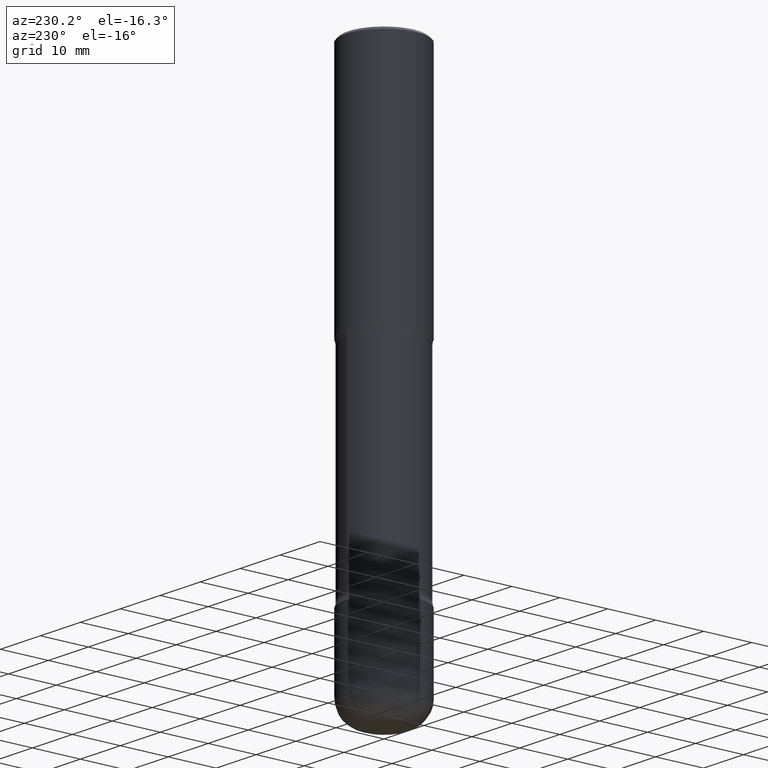
[diagram: clean part render]
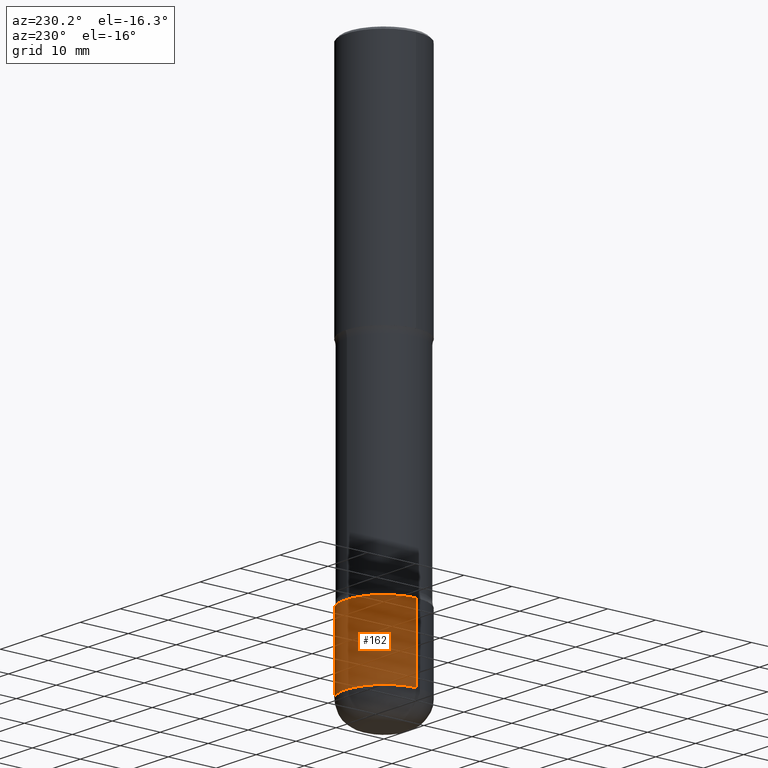
[diagram: same view with one face highlighted and labeled with its STEP entity id]
A machine part, auxiliary view. The second image highlights one B-rep face of the part: STEP entity #162.
In plain terms, the highlighted cylindrical surface (partial cylindrical patch) has radius 7.9997 mm, axis along (-0, 0, 1).
Its self-contained STEP definition (entity closure, byte-faithful):
#7 = ORIENTED_EDGE ( 'NONE', *, *, #287, .T. ) ;
#25 = CARTESIAN_POINT ( 'NONE',  ( -0.3149500000000002853, 2.237854346276437562E-15, -1.549218606675783797E-29 ) ) ;
#34 = CARTESIAN_POINT ( 'NONE',  ( 0.3149500000000002298, -1.525812259887842581E-14, -3.740200000000000635 ) ) ;
#36 = AXIS2_PLACEMENT_3D ( 'NONE', #180, #348, #401 ) ;
#42 = DIRECTION ( 'NONE',  ( 1.000000000000000000, -6.982962677686264344E-15, 0.000000000000000000 ) ) ;
#56 = VERTEX_POINT ( 'NONE', #163 ) ;
#69 = ORIENTED_EDGE ( 'NONE', *, *, #82, .F. ) ;
#82 = EDGE_CURVE ( 'NONE', #546, #56, #381, .T. ) ;
#91 = DIRECTION ( 'NONE',  ( 1.000000000000000000, -6.982962677686263555E-15, 0.000000000000000000 ) ) ;
#124 = AXIS2_PLACEMENT_3D ( 'NONE', #280, #504, #91 ) ;
#125 = DIRECTION ( 'NONE',  ( -2.445468806185136597E-29, 3.491481338843145583E-15, 1.000000000000000000 ) ) ;
#129 = AXIS2_PLACEMENT_3D ( 'NONE', #470, #125, #42 ) ;
#130 = EDGE_CURVE ( 'NONE', #541, #546, #514, .T. ) ;
#134 = VERTEX_POINT ( 'NONE', #238 ) ;
#158 = ORIENTED_EDGE ( 'NONE', *, *, #424, .T. ) ;
#162 = ADVANCED_FACE ( 'NONE', ( #474 ), #254, .T. ) ;
#163 = CARTESIAN_POINT ( 'NONE',  ( -0.3149500000000002298, -1.185184402255813765E-14, -3.740200000000000635 ) ) ;
#180 = CARTESIAN_POINT ( 'NONE',  ( 0.000000000000000000, 0.000000000000000000, 0.000000000000000000 ) ) ;
#223 = ORIENTED_EDGE ( 'NONE', *, *, #130, .F. ) ;
#238 = CARTESIAN_POINT ( 'NONE',  ( -0.3149500000000003408, -1.288270388785157535E-14, -4.330700000000000216 ) ) ;
#242 = CARTESIAN_POINT ( 'NONE',  ( 0.3149500000000002853, -2.199284095337291843E-15, 1.535751875536931531E-29 ) ) ;
#254 = CYLINDRICAL_SURFACE ( 'NONE', #36, 0.3149500000000002853 ) ;
#280 = CARTESIAN_POINT ( 'NONE',  ( 1.059059175894597327E-28, -1.512055823412801291E-14, -4.330700000000000216 ) ) ;
#286 = DIRECTION ( 'NONE',  ( -2.445468806185136877E-29, 3.491481338843145188E-15, 1.000000000000000000 ) ) ;
#287 = EDGE_CURVE ( 'NONE', #541, #134, #369, .T. ) ;
#348 = DIRECTION ( 'NONE',  ( -2.445468806185136597E-29, 3.491481338843145583E-15, 1.000000000000000000 ) ) ;
#369 = CIRCLE ( 'NONE', #124, 0.3149500000000002853 ) ;
#381 = CIRCLE ( 'NONE', #129, 0.3149500000000002298 ) ;
#401 = DIRECTION ( 'NONE',  ( 1.000000000000000000, -6.982962677686267499E-15, 4.876176775795936353E-29 ) ) ;
#416 = LINE ( 'NONE', #25, #511 ) ;
#423 = CARTESIAN_POINT ( 'NONE',  ( 0.3149500000000003408, -1.731984232946530752E-14, -4.330700000000000216 ) ) ;
#424 = EDGE_CURVE ( 'NONE', #134, #56, #416, .T. ) ;
#448 = EDGE_LOOP ( 'NONE', ( #7, #158, #69, #223 ) ) ;
#470 = CARTESIAN_POINT ( 'NONE',  ( 9.146542428893650504E-29, -1.305883850354113594E-14, -3.740200000000000635 ) ) ;
#474 = FACE_OUTER_BOUND ( 'NONE', #448, .T. ) ;
#504 = DIRECTION ( 'NONE',  ( -2.445468806185136597E-29, 3.491481338843145583E-15, 1.000000000000000000 ) ) ;
#511 = VECTOR ( 'NONE', #528, 39.37007874015748143 ) ;
#514 = LINE ( 'NONE', #242, #516 ) ;
#516 = VECTOR ( 'NONE', #286, 39.37007874015748143 ) ;
#528 = DIRECTION ( 'NONE',  ( -2.445468806185136877E-29, 3.491481338843145188E-15, 1.000000000000000000 ) ) ;
#541 = VERTEX_POINT ( 'NONE', #423 ) ;
#546 = VERTEX_POINT ( 'NONE', #34 ) ;